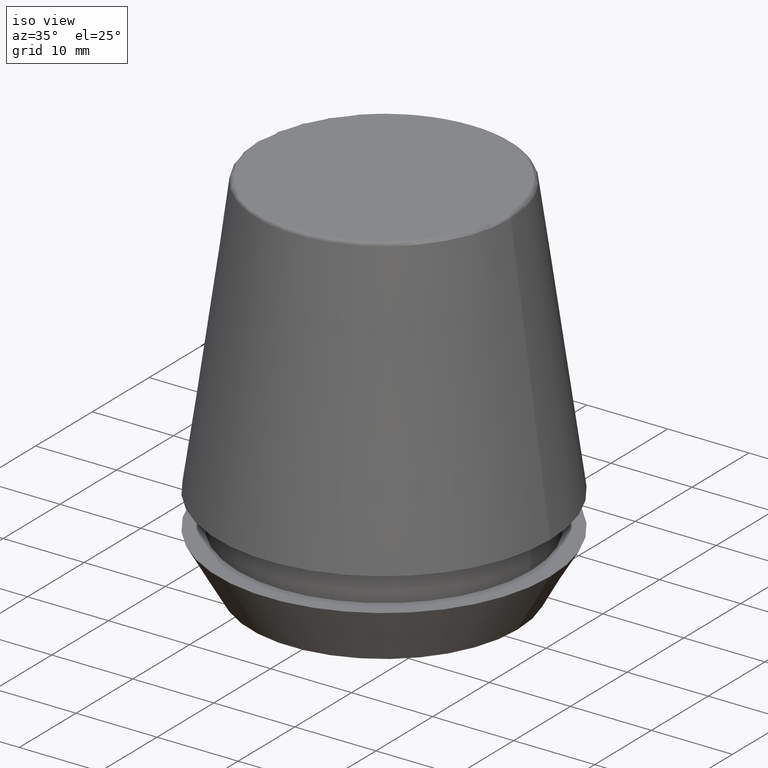
[diagram: clean part render]
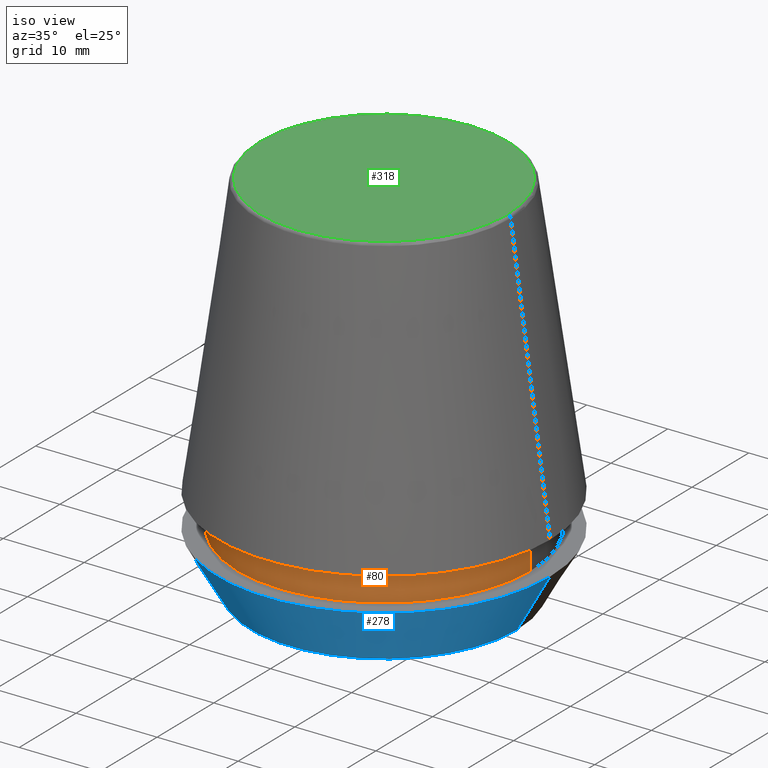
[diagram: same view with three faces highlighted in distinct colors, each labeled with its STEP entity id]
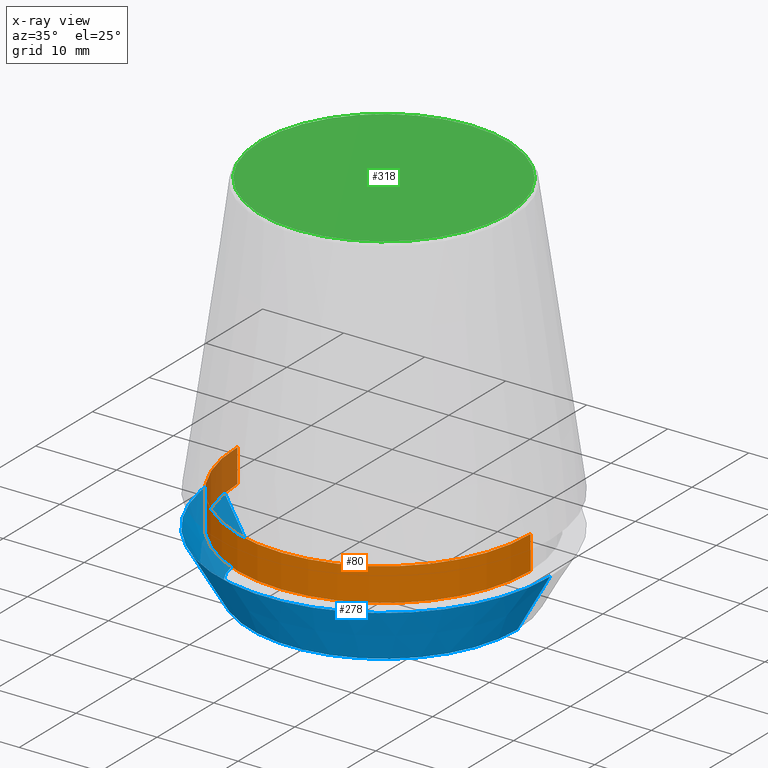
[diagram: x-ray of the same camera — body ghosted, the three highlighted faces saturated]
A machine part, iso view with three faces highlighted in distinct colors.
The next image is the same camera in x-ray (body ghosted, the three faces saturated) — at least one of them is partly hidden behind the body in this view.
Their STEP definitions:

[orange] entity #80 — the highlighted cylindrical surface (partial cylindrical patch) has radius 18.1 mm, axis along (-0, -0, 1).
#3 = ORIENTED_EDGE ( 'NONE', *, *, #130, .F. ) ;
#5 = EDGE_LOOP ( 'NONE', ( #384, #336, #15, #3 ) ) ;
#15 = ORIENTED_EDGE ( 'NONE', *, *, #333, .T. ) ;
#36 = LINE ( 'NONE', #77, #141 ) ;
#38 = FACE_OUTER_BOUND ( 'NONE', #5, .T. ) ;
#39 = VECTOR ( 'NONE', #233, 1000.000000000000000 ) ;
#46 = DIRECTION ( 'NONE',  ( -0.0000000000000000000, -0.0000000000000000000, 1.000000000000000000 ) ) ;
#47 = DIRECTION ( 'NONE',  ( 1.000000000000000000, 0.0000000000000000000, 0.0000000000000000000 ) ) ;
#50 = CARTESIAN_POINT ( 'NONE',  ( 18.10000000000000100, 0.0000000000000000000, 6.999999999999999100 ) ) ;
#77 = CARTESIAN_POINT ( 'NONE',  ( 18.10000000000000500, 0.0000000000000000000, 46.00000000000000000 ) ) ;
#80 = ADVANCED_FACE ( 'NONE', ( #38 ), #219, .T. ) ;
#84 = CARTESIAN_POINT ( 'NONE',  ( -18.10000000000000500, 2.216610706456710000E-015, 11.09999999999999800 ) ) ;
#97 = DIRECTION ( 'NONE',  ( -0.0000000000000000000, -0.0000000000000000000, 1.000000000000000000 ) ) ;
#111 = CIRCLE ( 'NONE', #236, 18.10000000000000500 ) ;
#113 = EDGE_CURVE ( 'NONE', #255, #191, #160, .T. ) ;
#128 = DIRECTION ( 'NONE',  ( -0.0000000000000000000, -0.0000000000000000000, 1.000000000000000000 ) ) ;
#130 = EDGE_CURVE ( 'NONE', #290, #306, #111, .T. ) ;
#131 = DIRECTION ( 'NONE',  ( 1.000000000000000000, 0.0000000000000000000, 0.0000000000000000000 ) ) ;
#141 = VECTOR ( 'NONE', #291, 1000.000000000000000 ) ;
#156 = CARTESIAN_POINT ( 'NONE',  ( 0.0000000000000000000, 0.0000000000000000000, 6.999999999999999100 ) ) ;
#160 = CIRCLE ( 'NONE', #258, 18.10000000000000100 ) ;
#172 = CARTESIAN_POINT ( 'NONE',  ( -18.10000000000000500, 2.216610706456710000E-015, 46.00000000000000000 ) ) ;
#191 = VERTEX_POINT ( 'NONE', #50 ) ;
#206 = CARTESIAN_POINT ( 'NONE',  ( 18.10000000000000500, 0.0000000000000000000, 11.09999999999999800 ) ) ;
#217 = AXIS2_PLACEMENT_3D ( 'NONE', #374, #46, #281 ) ;
#219 = CYLINDRICAL_SURFACE ( 'NONE', #217, 18.10000000000000500 ) ;
#233 = DIRECTION ( 'NONE',  ( -0.0000000000000000000, -0.0000000000000000000, 1.000000000000000000 ) ) ;
#236 = AXIS2_PLACEMENT_3D ( 'NONE', #337, #128, #47 ) ;
#255 = VERTEX_POINT ( 'NONE', #331 ) ;
#258 = AXIS2_PLACEMENT_3D ( 'NONE', #156, #97, #131 ) ;
#268 = LINE ( 'NONE', #172, #39 ) ;
#281 = DIRECTION ( 'NONE',  ( 1.000000000000000000, 0.0000000000000000000, 0.0000000000000000000 ) ) ;
#286 = EDGE_CURVE ( 'NONE', #255, #290, #268, .T. ) ;
#290 = VERTEX_POINT ( 'NONE', #84 ) ;
#291 = DIRECTION ( 'NONE',  ( -0.0000000000000000000, -0.0000000000000000000, 1.000000000000000000 ) ) ;
#306 = VERTEX_POINT ( 'NONE', #206 ) ;
#331 = CARTESIAN_POINT ( 'NONE',  ( -18.10000000000000100, 2.216610706456709600E-015, 6.999999999999999100 ) ) ;
#333 = EDGE_CURVE ( 'NONE', #191, #306, #36, .T. ) ;
#336 = ORIENTED_EDGE ( 'NONE', *, *, #113, .T. ) ;
#337 = CARTESIAN_POINT ( 'NONE',  ( 0.0000000000000000000, 0.0000000000000000000, 11.09999999999999800 ) ) ;
#374 = CARTESIAN_POINT ( 'NONE',  ( 0.0000000000000000000, 0.0000000000000000000, 46.00000000000000000 ) ) ;
#384 = ORIENTED_EDGE ( 'NONE', *, *, #286, .F. ) ;

[blue] entity #278 — the highlighted conical surface has half-angle 30 deg.
#2 = DIRECTION ( 'NONE',  ( -0.0000000000000000000, -0.0000000000000000000, 1.000000000000000000 ) ) ;
#20 = ORIENTED_EDGE ( 'NONE', *, *, #58, .T. ) ;
#21 = CARTESIAN_POINT ( 'NONE',  ( -16.45854811567268100, 2.015590826847124800E-015, 0.0000000000000000000 ) ) ;
#32 = AXIS2_PLACEMENT_3D ( 'NONE', #133, #315, #101 ) ;
#51 = EDGE_CURVE ( 'NONE', #305, #273, #83, .T. ) ;
#58 = EDGE_CURVE ( 'NONE', #305, #304, #228, .T. ) ;
#69 = VECTOR ( 'NONE', #190, 1000.000000000000000 ) ;
#83 = LINE ( 'NONE', #21, #69 ) ;
#86 = DIRECTION ( 'NONE',  ( 1.000000000000000000, 0.0000000000000000000, 0.0000000000000000000 ) ) ;
#101 = DIRECTION ( 'NONE',  ( 1.000000000000000000, 0.0000000000000000000, 0.0000000000000000000 ) ) ;
#107 = CARTESIAN_POINT ( 'NONE',  ( 16.45854811567268100, 0.0000000000000000000, 0.0000000000000000000 ) ) ;
#108 = FACE_OUTER_BOUND ( 'NONE', #181, .T. ) ;
#133 = CARTESIAN_POINT ( 'NONE',  ( 0.0000000000000000000, 0.0000000000000000000, 0.0000000000000000000 ) ) ;
#181 = EDGE_LOOP ( 'NONE', ( #232, #20, #289, #209 ) ) ;
#183 = AXIS2_PLACEMENT_3D ( 'NONE', #361, #293, #329 ) ;
#188 = VERTEX_POINT ( 'NONE', #195 ) ;
#190 = DIRECTION ( 'NONE',  ( -0.4999999999999941700, 6.123233995736694500E-017, 0.8660254037844420400 ) ) ;
#195 = CARTESIAN_POINT ( 'NONE',  ( 20.50000000000000000, 0.0000000000000000000, 7.000000000000006200 ) ) ;
#209 = ORIENTED_EDGE ( 'NONE', *, *, #303, .F. ) ;
#228 = CIRCLE ( 'NONE', #32, 16.45854811567268100 ) ;
#232 = ORIENTED_EDGE ( 'NONE', *, *, #51, .F. ) ;
#260 = CARTESIAN_POINT ( 'NONE',  ( -20.50000000000000000, 2.510525938252074100E-015, 7.000000000000006200 ) ) ;
#262 = CARTESIAN_POINT ( 'NONE',  ( 16.45854811567268100, 0.0000000000000000000, 0.0000000000000000000 ) ) ;
#273 = VERTEX_POINT ( 'NONE', #260 ) ;
#278 = ADVANCED_FACE ( 'NONE', ( #108 ), #338, .T. ) ;
#288 = AXIS2_PLACEMENT_3D ( 'NONE', #296, #2, #86 ) ;
#289 = ORIENTED_EDGE ( 'NONE', *, *, #319, .T. ) ;
#293 = DIRECTION ( 'NONE',  ( -0.0000000000000000000, -0.0000000000000000000, 1.000000000000000000 ) ) ;
#296 = CARTESIAN_POINT ( 'NONE',  ( 0.0000000000000000000, 0.0000000000000000000, 7.000000000000006200 ) ) ;
#303 = EDGE_CURVE ( 'NONE', #273, #188, #371, .T. ) ;
#304 = VERTEX_POINT ( 'NONE', #262 ) ;
#305 = VERTEX_POINT ( 'NONE', #363 ) ;
#315 = DIRECTION ( 'NONE',  ( -0.0000000000000000000, -0.0000000000000000000, 1.000000000000000000 ) ) ;
#319 = EDGE_CURVE ( 'NONE', #304, #188, #349, .T. ) ;
#324 = DIRECTION ( 'NONE',  ( 0.4999999999999941700, 0.0000000000000000000, 0.8660254037844420400 ) ) ;
#329 = DIRECTION ( 'NONE',  ( 1.000000000000000000, 0.0000000000000000000, 0.0000000000000000000 ) ) ;
#338 = CONICAL_SURFACE ( 'NONE', #183, 16.45854811567268100, 0.5235987755982921500 ) ;
#349 = LINE ( 'NONE', #107, #380 ) ;
#361 = CARTESIAN_POINT ( 'NONE',  ( 0.0000000000000000000, 0.0000000000000000000, 0.0000000000000000000 ) ) ;
#363 = CARTESIAN_POINT ( 'NONE',  ( -16.45854811567268100, 2.263058382549599700E-015, 0.0000000000000000000 ) ) ;
#371 = CIRCLE ( 'NONE', #288, 20.50000000000000000 ) ;
#380 = VECTOR ( 'NONE', #324, 1000.000000000000000 ) ;

[green] entity #318 — the highlighted planar face has unit normal (0, 0, -1).
#8 = EDGE_CURVE ( 'NONE', #112, #253, #162, .T. ) ;
#24 = CARTESIAN_POINT ( 'NONE',  ( -15.24773554530077600, 1.891563625393435400E-015, 46.00000000000000000 ) ) ;
#34 = FACE_OUTER_BOUND ( 'NONE', #63, .T. ) ;
#43 = AXIS2_PLACEMENT_3D ( 'NONE', #231, #54, #60 ) ;
#45 = DIRECTION ( 'NONE',  ( 1.000000000000000000, 0.0000000000000000000, 0.0000000000000000000 ) ) ;
#54 = DIRECTION ( 'NONE',  ( -0.0000000000000000000, -0.0000000000000000000, 1.000000000000000000 ) ) ;
#55 = PLANE ( 'NONE',  #230 ) ;
#60 = DIRECTION ( 'NONE',  ( 1.000000000000000000, 0.0000000000000000000, 0.0000000000000000000 ) ) ;
#63 = EDGE_LOOP ( 'NONE', ( #322, #239 ) ) ;
#112 = VERTEX_POINT ( 'NONE', #216 ) ;
#125 = DIRECTION ( 'NONE',  ( -0.0000000000000000000, -0.0000000000000000000, 1.000000000000000000 ) ) ;
#162 = CIRCLE ( 'NONE', #207, 15.24773554530077600 ) ;
#196 = CIRCLE ( 'NONE', #43, 15.24773554530077600 ) ;
#207 = AXIS2_PLACEMENT_3D ( 'NONE', #267, #125, #45 ) ;
#216 = CARTESIAN_POINT ( 'NONE',  ( 15.24773554530077600, 0.0000000000000000000, 46.00000000000000000 ) ) ;
#225 = EDGE_CURVE ( 'NONE', #253, #112, #196, .T. ) ;
#230 = AXIS2_PLACEMENT_3D ( 'NONE', #354, #254, #287 ) ;
#231 = CARTESIAN_POINT ( 'NONE',  ( 0.0000000000000000000, 0.0000000000000000000, 46.00000000000000000 ) ) ;
#239 = ORIENTED_EDGE ( 'NONE', *, *, #225, .T. ) ;
#253 = VERTEX_POINT ( 'NONE', #24 ) ;
#254 = DIRECTION ( 'NONE',  ( 0.0000000000000000000, 0.0000000000000000000, -1.000000000000000000 ) ) ;
#267 = CARTESIAN_POINT ( 'NONE',  ( 0.0000000000000000000, 0.0000000000000000000, 46.00000000000000000 ) ) ;
#287 = DIRECTION ( 'NONE',  ( -1.000000000000000000, 0.0000000000000000000, -0.0000000000000000000 ) ) ;
#318 = ADVANCED_FACE ( 'NONE', ( #34 ), #55, .F. ) ;
#322 = ORIENTED_EDGE ( 'NONE', *, *, #8, .T. ) ;
#354 = CARTESIAN_POINT ( 'NONE',  ( 0.0000000000000000000, 15.24773554530077600, 46.00000000000000000 ) ) ;